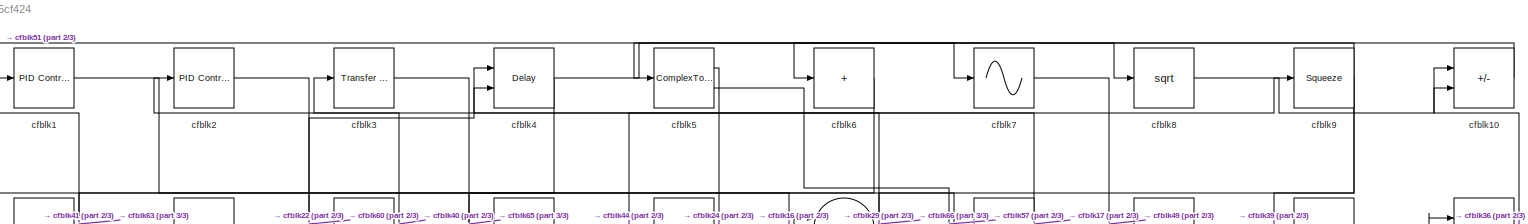
[diagram: root canvas - part 1/3, full width, top band]
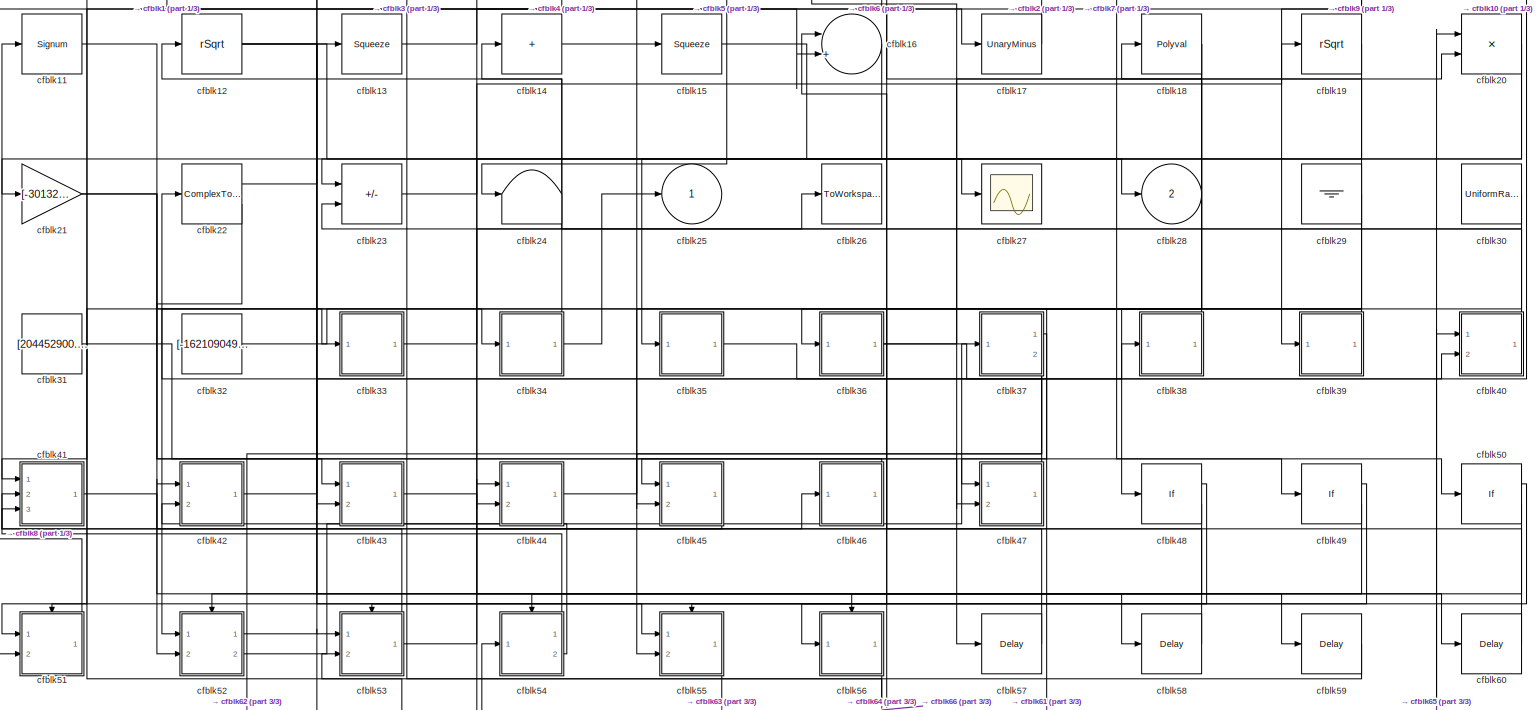
[diagram: root canvas - part 2/3, full width, middle band]
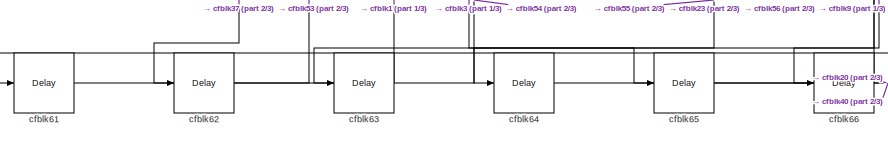
[diagram: root canvas - part 3/3, bottom left region]
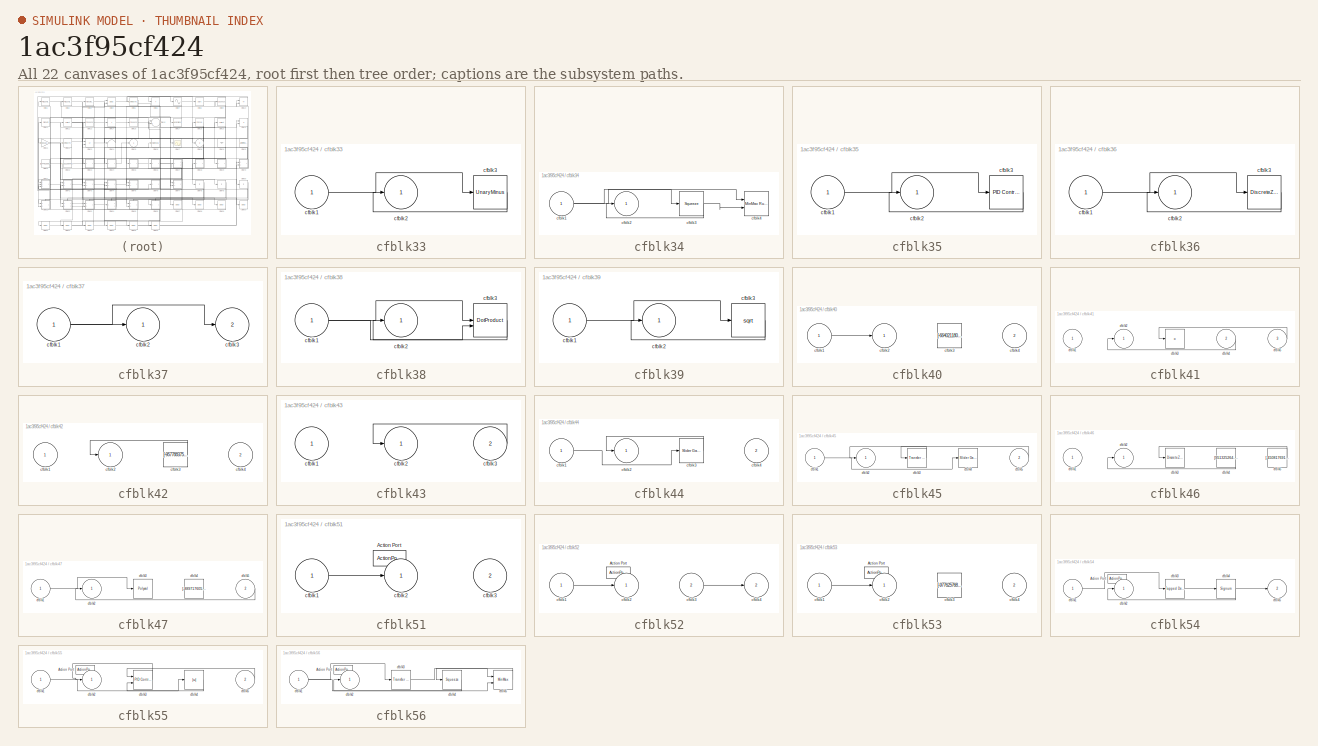
[diagram: thumbnail index - all 22 canvases of the model, root first then tree order]
MODEL slx_1ac3f95cf424
KIND model
CONFIG AbsTol = auto
CONFIG EnableMultiTasking = off
CONFIG FixedStep = auto
CONFIG MaxStep = auto
CONFIG MinStep = auto
CONFIG RelTol = 1e-3
CONFIG SampleTimeConstraint = Unconstrained
CONFIG SolverName = VariableStepAuto
CONFIG StartTime = 0.0
CONFIG StopTime = 10.0
BLOCK [Reference] cfblk1  REF=slpidlib/PID Controller
  Ports = [1, 1]
  SourceBlock = slpidlib/PID Controller
  SourceProductBaseCode = SL
  SourceType = PID 1dof
BLOCK [Sum] cfblk10
  IconShape = rectangular
  Inputs = +-
  Ports = [2, 1]
BLOCK [Signum] cfblk11
BLOCK [Sqrt] cfblk12
  AlgorithmType = Newton-Raphson
  Operator = rSqrt
BLOCK [Squeeze] cfblk13
BLOCK [Sum] cfblk14
  IconShape = rectangular
  Inputs = +
  Ports = [1, 1]
BLOCK [Squeeze] cfblk15
BLOCK [Sum] cfblk16
  Inputs = |++
  Ports = [2, 1]
BLOCK [UnaryMinus] cfblk17
BLOCK [Polyval] cfblk18
  Coefs = [ +2.081618890e-019, -1.441693666e-014, +4.719686976e-010, -8.536869453e-006, +1.621573104e-001, -8.087801117e+001 ]
BLOCK [Sqrt] cfblk19
  AlgorithmType = Newton-Raphson
  Operator = rSqrt
BLOCK [Reference] cfblk2  REF=slpidlib/PID Controller
  Ports = [1, 1]
  SourceBlock = slpidlib/PID Controller
  SourceProductBaseCode = SL
  SourceType = PID 1dof
BLOCK [Product] cfblk20
  Inputs = **
  Ports = [2, 1]
BLOCK [Gain] cfblk21
  Gain = [-301322908.390573]
BLOCK [ComplexToRealImag] cfblk22
  Ports = [1, 2]
BLOCK [Sum] cfblk23
  IconShape = rectangular
  Inputs = +-
  Ports = [2, 1]
BLOCK [Terminator] cfblk24
BLOCK [Outport] cfblk25
BLOCK [ToWorkspace] cfblk26
  FixptAsFi = on
  MaxDataPoints = inf
  Ports = [1]
  SampleTime = -1
  SaveFormat = Timeseries
  VariableName = gdozbth
BLOCK [Scope] cfblk27
  Floating = off
  NumInputPorts = 1
  Ports = [1]
BLOCK [Outport] cfblk28
  Port = 2
BLOCK [Ground] cfblk29
BLOCK [Reference] cfblk3  REF=simulink/Discrete/Transfer Fcn
Real Zero
  Ports = [1, 1]
  SourceBlock = simulink/Discrete/Transfer Fcn\nReal Zero
  SourceProductBaseCode = SL
  SourceType = Transfer Fcn Real Zero
BLOCK [UniformRandomNumber] cfblk30
  Maximum = [4859082015.358990]
  Minimum = [-9434247786.619804]
  SampleTime = 0.1
  Seed = [98185596.000000]
BLOCK [Constant] cfblk31
  SampleTime = 1
  Value = [204452900.796504]
BLOCK [Constant] cfblk32
  SampleTime = 1
  Value = [-162109049.916251]
BLOCK [SubSystem] cfblk33
  Ports = [1, 1]
  RequestExecContextInheritance = off
BLOCK [Inport] cfblk33/cfblk1
BLOCK [Outport] cfblk33/cfblk2
BLOCK [UnaryMinus] cfblk33/cfblk3
BLOCK [SubSystem] cfblk34
  Ports = [1, 1]
  RequestExecContextInheritance = off
BLOCK [Inport] cfblk34/cfblk1
BLOCK [Outport] cfblk34/cfblk2
BLOCK [Squeeze] cfblk34/cfblk3
BLOCK [Reference] cfblk34/cfblk4  REF=simulink/Math
Operations/MinMax
Running
Resettable
  Ports = [2, 1]
  SourceBlock = simulink/Math\nOperations/MinMax\nRunning\nResettable
  SourceProductBaseCode = SL
  SourceType = MinMax Running Resettable
BLOCK [SubSystem] cfblk35
  Ports = [1, 1]
  RequestExecContextInheritance = off
BLOCK [Inport] cfblk35/cfblk1
BLOCK [Outport] cfblk35/cfblk2
BLOCK [Reference] cfblk35/cfblk3  REF=slpidlib/PID Controller
  Ports = [1, 1]
  SourceBlock = slpidlib/PID Controller
  SourceProductBaseCode = SL
  SourceType = PID 1dof
BLOCK [SubSystem] cfblk36
  Ports = [1, 1]
  RequestExecContextInheritance = off
BLOCK [Inport] cfblk36/cfblk1
BLOCK [Outport] cfblk36/cfblk2
BLOCK [DiscreteZeroPole] cfblk36/cfblk3
  Gain = 1
  Poles = [0 0.5]
BLOCK [SubSystem] cfblk37
  Ports = [1, 2]
  RequestExecContextInheritance = off
BLOCK [Inport] cfblk37/cfblk1
BLOCK [Outport] cfblk37/cfblk2
BLOCK [Outport] cfblk37/cfblk3
  Port = 2
BLOCK [SubSystem] cfblk38
  Ports = [1, 1]
  RequestExecContextInheritance = off
BLOCK [Inport] cfblk38/cfblk1
BLOCK [Outport] cfblk38/cfblk2
BLOCK [DotProduct] cfblk38/cfblk3
  OutDataTypeStr = Inherit: Inherit via internal rule
BLOCK [SubSystem] cfblk39
  Ports = [1, 1]
  RequestExecContextInheritance = off
BLOCK [Inport] cfblk39/cfblk1
BLOCK [Outport] cfblk39/cfblk2
BLOCK [Sqrt] cfblk39/cfblk3
BLOCK [Delay] cfblk4
  DelayLengthSource = Input port
  InputPortMap = u0,p1
  Ports = [2, 1]
  SampleTime = 1
BLOCK [SubSystem] cfblk40
  Ports = [2, 1]
  RequestExecContextInheritance = off
BLOCK [Inport] cfblk40/cfblk1
BLOCK [Outport] cfblk40/cfblk2
BLOCK [Constant] cfblk40/cfblk3
  SampleTime = 1
  Value = [-664021180.988274]
BLOCK [Inport] cfblk40/cfblk4
  Port = 2
BLOCK [SubSystem] cfblk41
  Ports = [3, 1]
  RequestExecContextInheritance = off
BLOCK [Inport] cfblk41/cfblk1
BLOCK [Outport] cfblk41/cfblk2
BLOCK [Product] cfblk41/cfblk3
  Inputs = *
  Ports = [1, 1]
BLOCK [Inport] cfblk41/cfblk4
  Port = 2
BLOCK [Inport] cfblk41/cfblk5
  Port = 3
BLOCK [SubSystem] cfblk42
  Ports = [2, 1]
  RequestExecContextInheritance = off
BLOCK [Inport] cfblk42/cfblk1
BLOCK [Outport] cfblk42/cfblk2
BLOCK [Constant] cfblk42/cfblk3
  SampleTime = 1
  Value = [-957788375.941074]
BLOCK [Inport] cfblk42/cfblk4
  Port = 2
BLOCK [SubSystem] cfblk43
  Ports = [2, 1]
  RequestExecContextInheritance = off
BLOCK [Inport] cfblk43/cfblk1
BLOCK [Outport] cfblk43/cfblk2
BLOCK [Inport] cfblk43/cfblk3
  Port = 2
BLOCK [SubSystem] cfblk44
  Ports = [2, 1]
  RequestExecContextInheritance = off
BLOCK [Inport] cfblk44/cfblk1
BLOCK [Outport] cfblk44/cfblk2
BLOCK [Reference] cfblk44/cfblk3  REF=simulink/Math
Operations/Slider
Gain
  Ports = [1, 1]
  SourceBlock = simulink/Math\nOperations/Slider\nGain
  SourceProductBaseCode = SL
  SourceType = Slider Gain
BLOCK [Inport] cfblk44/cfblk4
  Port = 2
BLOCK [SubSystem] cfblk45
  Ports = [2, 1]
  RequestExecContextInheritance = off
BLOCK [Inport] cfblk45/cfblk1
BLOCK [Outport] cfblk45/cfblk2
BLOCK [Reference] cfblk45/cfblk3  REF=simulink/Discrete/Transfer Fcn
Real Zero
  Ports = [1, 1]
  SourceBlock = simulink/Discrete/Transfer Fcn\nReal Zero
  SourceProductBaseCode = SL
  SourceType = Transfer Fcn Real Zero
BLOCK [Reference] cfblk45/cfblk4  REF=simulink/Math
Operations/Slider
Gain
  Ports = [1, 1]
  SourceBlock = simulink/Math\nOperations/Slider\nGain
  SourceProductBaseCode = SL
  SourceType = Slider Gain
BLOCK [Inport] cfblk45/cfblk5
  Port = 2
BLOCK [SubSystem] cfblk46
  Ports = [1, 1]
  RequestExecContextInheritance = off
BLOCK [Inport] cfblk46/cfblk1
BLOCK [Outport] cfblk46/cfblk2
BLOCK [DiscreteZeroPole] cfblk46/cfblk3
  Gain = 1
  Poles = [0 0.5]
BLOCK [Constant] cfblk46/cfblk4
  SampleTime = 1
  Value = [951325264.772253]
BLOCK [Constant] cfblk46/cfblk5
  SampleTime = 1
  Value = [-450817691.375146]
BLOCK [SubSystem] cfblk47
  Ports = [2, 1]
  RequestExecContextInheritance = off
BLOCK [Inport] cfblk47/cfblk1
BLOCK [Outport] cfblk47/cfblk2
BLOCK [Polyval] cfblk47/cfblk3
  Coefs = [ +2.081618890e-019, -1.441693666e-014, +4.719686976e-010, -8.536869453e-006, +1.621573104e-001, -8.087801117e+001 ]
BLOCK [Constant] cfblk47/cfblk4
  SampleTime = 1
  Value = [-889717605.879334]
BLOCK [Inport] cfblk47/cfblk5
  Port = 2
BLOCK [If] cfblk48
  IfExpression = u1 >= 0
  Ports = [1, 2]
  SampleTime = 1
BLOCK [If] cfblk49
  IfExpression = u1 >= 0
  Ports = [1, 2]
  SampleTime = 1
BLOCK [ComplexToRealImag] cfblk5
  Ports = [1, 2]
BLOCK [If] cfblk50
  IfExpression = u1 >= 0
  Ports = [1, 2]
  SampleTime = 1
BLOCK [SubSystem] cfblk51
  Ports = [2, 1, 0, 0, 0, 0, 0, 1]
  RequestExecContextInheritance = off
  TreatAsAtomicUnit = on
BLOCK [ActionPort] cfblk51/Action Port
  ActionPortLabel = if(u1 >= 0)
BLOCK [Inport] cfblk51/cfblk1
BLOCK [Outport] cfblk51/cfblk2
BLOCK [Inport] cfblk51/cfblk3
  Port = 2
BLOCK [SubSystem] cfblk52
  Ports = [2, 2, 0, 0, 0, 0, 0, 1]
  RequestExecContextInheritance = off
  TreatAsAtomicUnit = on
BLOCK [ActionPort] cfblk52/Action Port
  ActionPortLabel = else
BLOCK [Inport] cfblk52/cfblk1
BLOCK [Outport] cfblk52/cfblk2
BLOCK [Inport] cfblk52/cfblk3
  Port = 2
BLOCK [Outport] cfblk52/cfblk4
  Port = 2
BLOCK [SubSystem] cfblk53
  Ports = [2, 1, 0, 0, 0, 0, 0, 1]
  RequestExecContextInheritance = off
  TreatAsAtomicUnit = on
BLOCK [ActionPort] cfblk53/Action Port
  ActionPortLabel = if(u1 >= 0)
BLOCK [Inport] cfblk53/cfblk1
BLOCK [Outport] cfblk53/cfblk2
BLOCK [Constant] cfblk53/cfblk3
  SampleTime = 1
  Value = [-977625768.652464]
BLOCK [Inport] cfblk53/cfblk4
  Port = 2
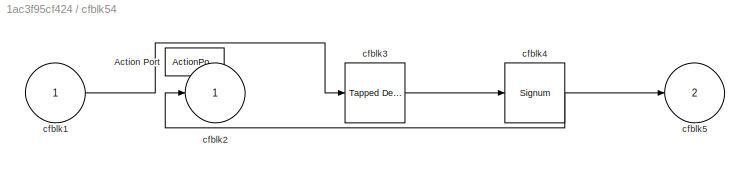
BLOCK [SubSystem] cfblk54
  Ports = [1, 2, 0, 0, 0, 0, 0, 1]
  RequestExecContextInheritance = off
  TreatAsAtomicUnit = on
BLOCK [ActionPort] cfblk54/Action Port
  ActionPortLabel = else
BLOCK [Inport] cfblk54/cfblk1
BLOCK [Outport] cfblk54/cfblk2
BLOCK [Reference] cfblk54/cfblk3  REF=simulink/Discrete/Tapped Delay
  Ports = [1, 1]
  SourceBlock = simulink/Discrete/Tapped Delay
  SourceProductBaseCode = SL
  SourceType = Tapped Delay Line
BLOCK [Signum] cfblk54/cfblk4
BLOCK [Outport] cfblk54/cfblk5
  Port = 2
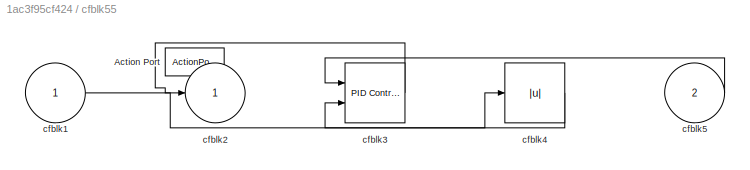
BLOCK [SubSystem] cfblk55
  Ports = [2, 1, 0, 0, 0, 0, 0, 1]
  RequestExecContextInheritance = off
  TreatAsAtomicUnit = on
BLOCK [ActionPort] cfblk55/Action Port
  ActionPortLabel = if(u1 >= 0)
BLOCK [Inport] cfblk55/cfblk1
BLOCK [Outport] cfblk55/cfblk2
BLOCK [Reference] cfblk55/cfblk3  REF=slpidlib/PID Controller (2DOF)
  Ports = [2, 1]
  SourceBlock = slpidlib/PID Controller (2DOF)
  SourceProductBaseCode = SL
  SourceType = PID 2dof
BLOCK [Abs] cfblk55/cfblk4
  SaturateOnIntegerOverflow = off
BLOCK [Inport] cfblk55/cfblk5
  Port = 2
BLOCK [SubSystem] cfblk56
  Ports = [1, 1, 0, 0, 0, 0, 0, 1]
  RequestExecContextInheritance = off
  TreatAsAtomicUnit = on
BLOCK [ActionPort] cfblk56/Action Port
  ActionPortLabel = else
BLOCK [Inport] cfblk56/cfblk1
BLOCK [Outport] cfblk56/cfblk2
BLOCK [Reference] cfblk56/cfblk3  REF=simulink/Discrete/Transfer Fcn
Lead or Lag
  Ports = [1, 1]
  SourceBlock = simulink/Discrete/Transfer Fcn\nLead or Lag
  SourceProductBaseCode = SL
  SourceType = Lead or Lag Compensator
BLOCK [Squeeze] cfblk56/cfblk4
BLOCK [MinMax] cfblk56/cfblk5
  Inputs = 2
  Ports = [2, 1]
BLOCK [Delay] cfblk57
  InputPortMap = u0
  Ports = [1, 1]
  SampleTime = 1
BLOCK [Delay] cfblk58
  InputPortMap = u0
  Ports = [1, 1]
  SampleTime = 1
BLOCK [Delay] cfblk59
  InputPortMap = u0
  Ports = [1, 1]
  SampleTime = 1
BLOCK [Sum] cfblk6
  IconShape = rectangular
  Inputs = +
  Ports = [1, 1]
BLOCK [Delay] cfblk60
  InputPortMap = u0
  Ports = [1, 1]
  SampleTime = 1
BLOCK [Delay] cfblk61
  InputPortMap = u0
  Ports = [1, 1]
  SampleTime = 1
BLOCK [Delay] cfblk62
  InputPortMap = u0
  Ports = [1, 1]
  SampleTime = 1
BLOCK [Delay] cfblk63
  InputPortMap = u0
  Ports = [1, 1]
  SampleTime = 1
BLOCK [Delay] cfblk64
  InputPortMap = u0
  Ports = [1, 1]
  SampleTime = 1
BLOCK [Delay] cfblk65
  InputPortMap = u0
  Ports = [1, 1]
  SampleTime = 1
BLOCK [Delay] cfblk66
  InputPortMap = u0
  Ports = [1, 1]
  SampleTime = 1
BLOCK [Sin] cfblk7
  Ports = [1, 1]
  SampleTime = 0
  TimeSource = Use external signal
BLOCK [Sqrt] cfblk8
BLOCK [Squeeze] cfblk9
LINE cfblk10:1 -> cfblk5:1
LINE cfblk11:1 -> cfblk33:1
NET cfblk12:1 -> cfblk28:1, cfblk50:1, cfblk55:1
LINE cfblk13:1 -> cfblk17:1
LINE cfblk14:1 -> cfblk15:1
LINE cfblk15:1 -> cfblk27:1
LINE cfblk16:1 -> cfblk23:1
LINE cfblk17:1 -> cfblk2:1
NET cfblk18:1 -> cfblk45:2, cfblk48:1, cfblk56:1
LINE cfblk19:1 -> cfblk44:2
LINE cfblk1:1 -> cfblk16:2
NET cfblk20:1 -> cfblk21:1, cfblk35:1
NET cfblk21:1 -> cfblk43:2, cfblk47:2
LINE cfblk22:1 -> cfblk4:1
LINE cfblk22:2 -> cfblk52:2
LINE cfblk23:1 -> cfblk19:1
NET cfblk29:1 -> cfblk47:1, cfblk4:2, cfblk51:1
LINE cfblk2:1 -> cfblk60:1
LINE cfblk30:1 -> cfblk52:1
LINE cfblk31:1 -> cfblk43:1
LINE cfblk32:1 -> cfblk34:1
LINE cfblk33/cfblk1:1 -> cfblk33/cfblk3:1
LINE cfblk33/cfblk3:1 -> cfblk33/cfblk2:1
LINE cfblk33:1 -> cfblk26:1
NET cfblk34/cfblk1:1 -> cfblk34/cfblk3:1, cfblk34/cfblk4:1
NET cfblk34/cfblk3:1 -> cfblk34/cfblk2:1, cfblk34/cfblk4:2
NET cfblk34:1 -> cfblk12:1, cfblk25:1
LINE cfblk35/cfblk1:1 -> cfblk35/cfblk3:1
LINE cfblk35/cfblk3:1 -> cfblk35/cfblk2:1
LINE cfblk35:1 -> cfblk40:2
LINE cfblk36/cfblk1:1 -> cfblk36/cfblk3:1
LINE cfblk36/cfblk3:1 -> cfblk36/cfblk2:1
NET cfblk36:1 -> cfblk10:1, cfblk20:2
NET cfblk37/cfblk1:1 -> cfblk37/cfblk2:1, cfblk37/cfblk3:1
LINE cfblk37:1 -> cfblk61:1
NET cfblk37:2 -> cfblk55:2, cfblk62:1
NET cfblk38/cfblk1:1 -> cfblk38/cfblk3:1, cfblk38/cfblk3:2
LINE cfblk38/cfblk3:1 -> cfblk38/cfblk2:1
LINE cfblk38:1 -> cfblk18:1
LINE cfblk39/cfblk1:1 -> cfblk39/cfblk3:1
LINE cfblk39/cfblk3:1 -> cfblk39/cfblk2:1
LINE cfblk39:1 -> cfblk36:1
LINE cfblk3:1 -> cfblk65:1
LINE cfblk40/cfblk1:1 -> cfblk40/cfblk2:1
NET cfblk40:1 -> cfblk14:1, cfblk3:1
LINE cfblk41/cfblk4:1 -> cfblk41/cfblk2:1
LINE cfblk41/cfblk5:1 -> cfblk41/cfblk3:1
LINE cfblk41:1 -> cfblk59:1
LINE cfblk42/cfblk3:1 -> cfblk42/cfblk2:1
LINE cfblk42:1 -> cfblk38:1
LINE cfblk43/cfblk3:1 -> cfblk43/cfblk2:1
LINE cfblk43:1 -> cfblk58:1
LINE cfblk44/cfblk1:1 -> cfblk44/cfblk3:1
LINE cfblk44/cfblk3:1 -> cfblk44/cfblk2:1
LINE cfblk44:1 -> cfblk9:1
LINE cfblk45/cfblk1:1 -> cfblk45/cfblk4:1
LINE cfblk45/cfblk3:1 -> cfblk45/cfblk2:1
LINE cfblk45/cfblk5:1 -> cfblk45/cfblk3:1
LINE cfblk45:1 -> cfblk41:2
LINE cfblk46/cfblk4:1 -> cfblk46/cfblk2:1
LINE cfblk46/cfblk5:1 -> cfblk46/cfblk3:1
LINE cfblk46:1 -> cfblk45:1
LINE cfblk47/cfblk1:1 -> cfblk47/cfblk3:1
LINE cfblk47/cfblk5:1 -> cfblk47/cfblk2:1
LINE cfblk47:1 -> cfblk22:1
LINE cfblk48:1 -> cfblk51:ifaction
LINE cfblk48:2 -> cfblk52:ifaction
LINE cfblk49:1 -> cfblk53:ifaction
LINE cfblk49:2 -> cfblk54:ifaction
NET cfblk4:1 -> cfblk51:2, cfblk7:1
LINE cfblk50:1 -> cfblk55:ifaction
LINE cfblk50:2 -> cfblk56:ifaction
LINE cfblk51/cfblk1:1 -> cfblk51/cfblk2:1
LINE cfblk51:1 -> cfblk8:1
LINE cfblk52/cfblk1:1 -> cfblk52/cfblk2:1
LINE cfblk52/cfblk3:1 -> cfblk52/cfblk4:1
LINE cfblk52:1 -> cfblk13:1
LINE cfblk52:2 -> cfblk37:1
LINE cfblk53/cfblk1:1 -> cfblk53/cfblk2:1
NET cfblk53:1 -> cfblk11:1, cfblk46:1
LINE cfblk54/cfblk1:1 -> cfblk54/cfblk3:1
LINE cfblk54/cfblk3:1 -> cfblk54/cfblk4:1
NET cfblk54/cfblk4:1 -> cfblk54/cfblk2:1, cfblk54/cfblk5:1
LINE cfblk54:1 -> cfblk41:3
LINE cfblk54:2 -> cfblk42:2
LINE cfblk55/cfblk1:1 -> cfblk55/cfblk4:1
LINE cfblk55/cfblk3:1 -> cfblk55/cfblk2:1
LINE cfblk55/cfblk4:1 -> cfblk55/cfblk3:2
LINE cfblk55/cfblk5:1 -> cfblk55/cfblk3:1
LINE cfblk55:1 -> cfblk63:1
NET cfblk56/cfblk1:1 -> cfblk56/cfblk3:1, cfblk56/cfblk5:2
LINE cfblk56/cfblk3:1 -> cfblk56/cfblk5:1
LINE cfblk56/cfblk4:1 -> cfblk56/cfblk2:1
LINE cfblk56/cfblk5:1 -> cfblk56/cfblk4:1
LINE cfblk56:1 -> cfblk64:1
LINE cfblk57:1 -> cfblk44:1
LINE cfblk58:1 -> cfblk16:1
LINE cfblk59:1 -> cfblk53:2
LINE cfblk5:1 -> cfblk24:1
LINE cfblk5:2 -> cfblk57:1
LINE cfblk60:1 -> cfblk42:1
LINE cfblk61:1 -> cfblk54:1
LINE cfblk62:1 -> cfblk53:1
LINE cfblk63:1 -> cfblk1:1
LINE cfblk64:1 -> cfblk20:1
LINE cfblk65:1 -> cfblk40:1
LINE cfblk66:1 -> cfblk23:2
LINE cfblk6:1 -> cfblk41:1
LINE cfblk7:1 -> cfblk49:1
LINE cfblk8:1 -> cfblk10:2
NET cfblk9:1 -> cfblk39:1, cfblk66:1, cfblk6:1
note: NET lines group one-source signal fan-out (src -> all destinations, sorted); 1:1 wires keep LINE
